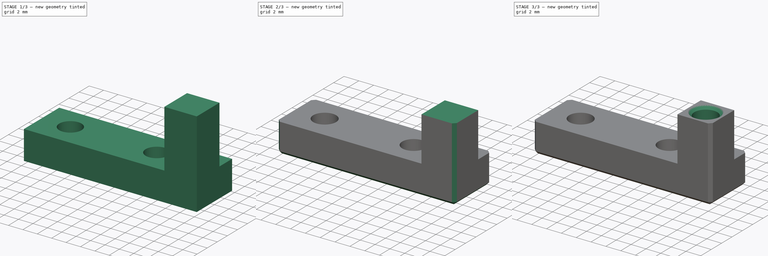
[diagram: build sequence overview — one tinted view per stage of 3, left to right]
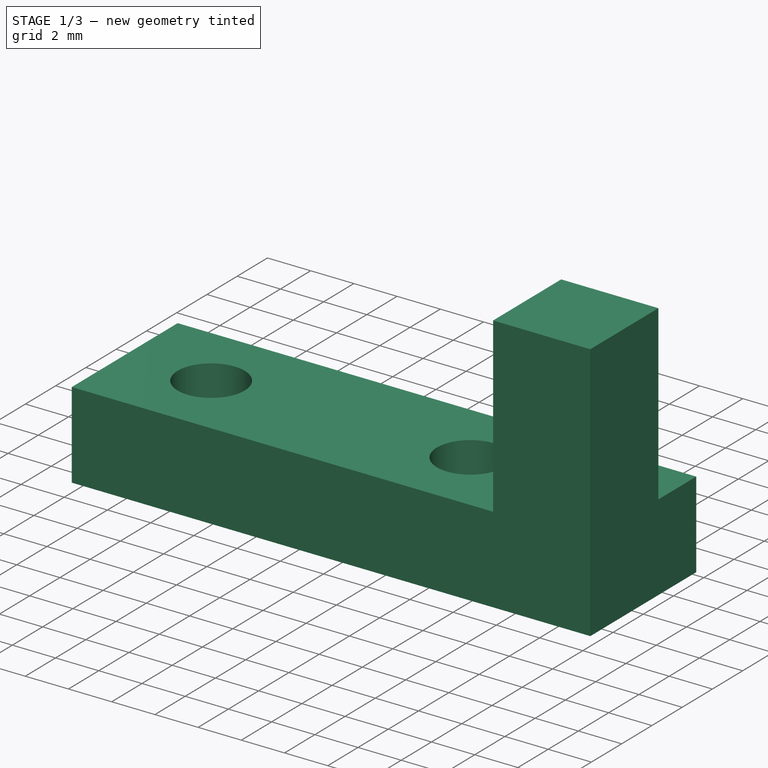
[diagram: stage 1 of 3 — iso view after this stage's code; geometry added in this stage tinted green]
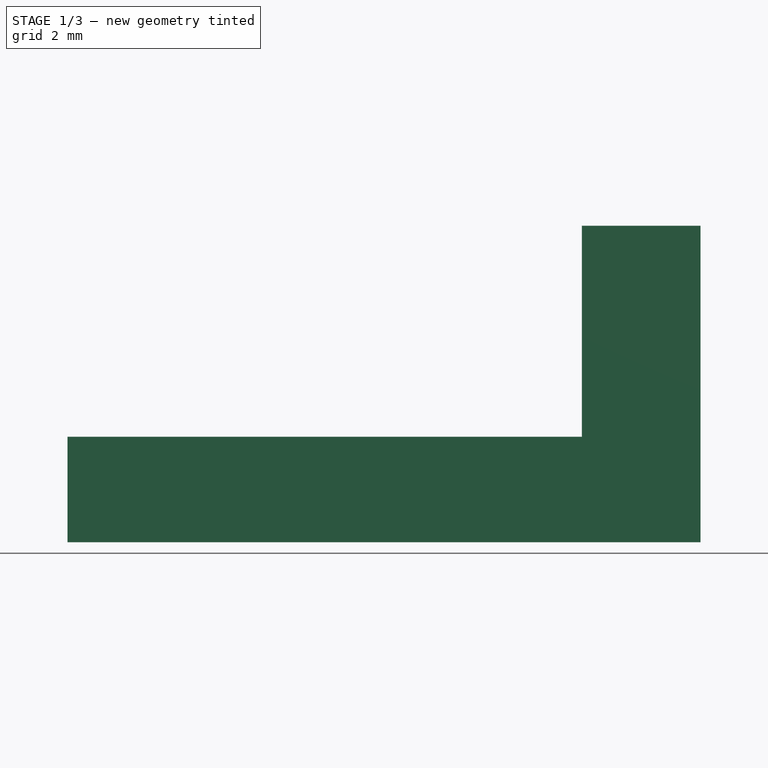
[diagram: stage 1 of 3 — front view after this stage's code; geometry added in this stage tinted green]
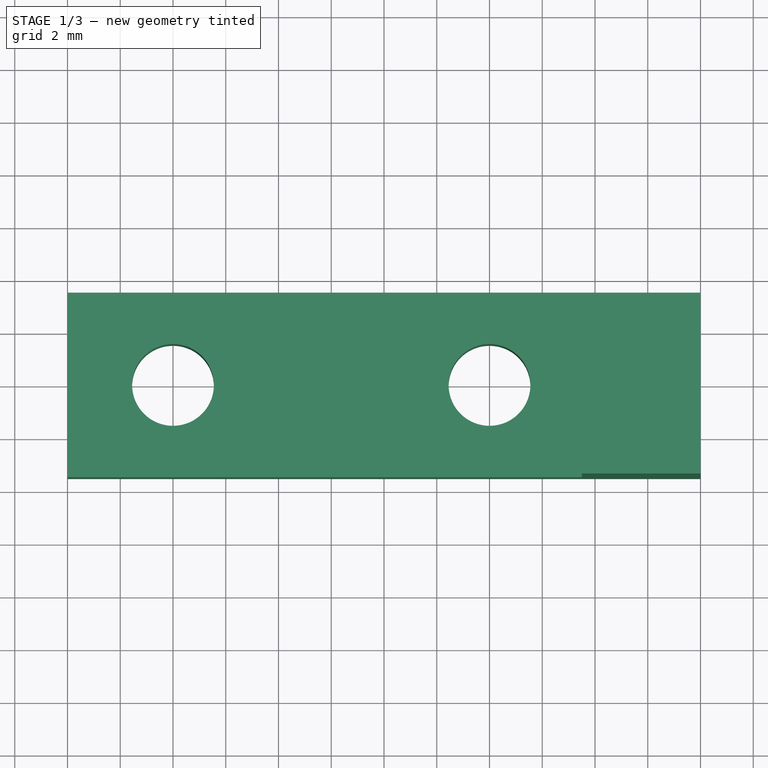
[diagram: stage 1 of 3 — top view after this stage's code; geometry added in this stage tinted green]
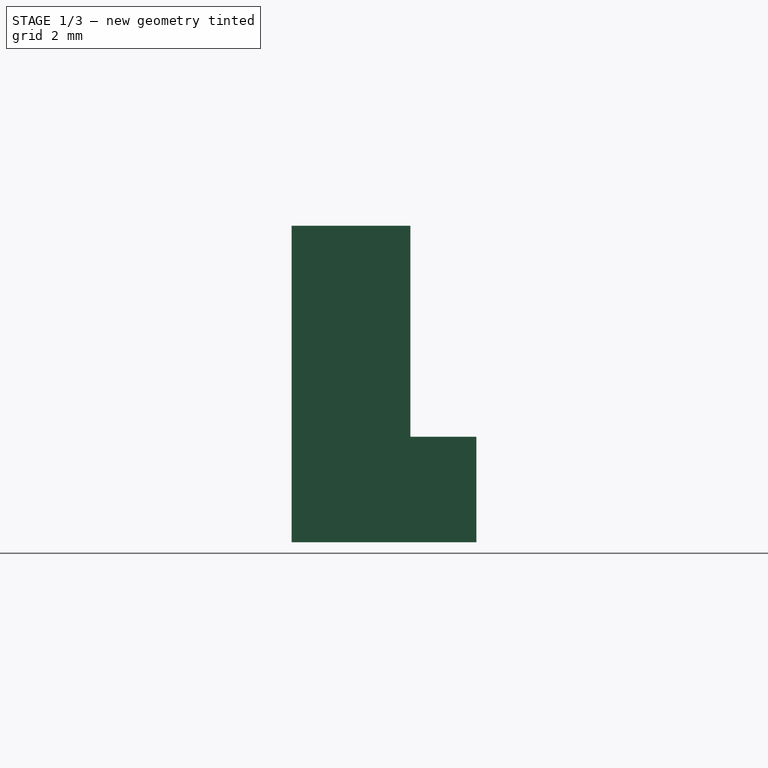
[diagram: stage 1 of 3 — right view after this stage's code; geometry added in this stage tinted green]
FCSTD DOCUMENT  (FreeCAD 0.19R24366 (Git))
Label: x-endstop
License: All rights reserved
LicenseURL: http://en.wikipedia.org/wiki/All_rights_reserved
objects: Sketcher::SketchObject×3, PartDesign::Pocket×3, PartDesign::Chamfer×2, PartDesign::Pad×1, PartDesign::Body×1, Part::Feature×1
note: 17 computed .brp shape members not serialized (recipe doc carries the construction recipe); baked Part::Feature solids carry a one-line shape summary decoded from their .brp

FEATURE [Sketcher::SketchObject] Sketch025
  FullyConstrained = false
  MapMode = 5
  Support = -> [XY_Plane016]
  sketch-geometry (6):
    g0: LineSegment StartX=-4 StartY=3.5 StartZ=0 EndX=20 EndY=3.5 EndZ=0
    g1: LineSegment StartX=20 StartY=3.5 StartZ=0 EndX=20 EndY=-3.5 EndZ=0
    g2: LineSegment StartX=20 StartY=-3.5 StartZ=0 EndX=-4 EndY=-3.5 EndZ=0
    g3: LineSegment StartX=-4 StartY=-3.5 StartZ=0 EndX=-4 EndY=3.5 EndZ=0
    g4: Circle CenterX=0 CenterY=0 CenterZ=0 NormalX=0 NormalY=0 NormalZ=1 AngleXU=0 Radius=1.55
    g5: Circle CenterX=12 CenterY=0 CenterZ=0 NormalX=0 NormalY=0 NormalZ=1 AngleXU=0 Radius=1.55
  constraints (16):
    c: Coincident(g0,g1)
    c: Coincident(g1,g2)
    c: Coincident(g2,g3)
    c: Coincident(g3,g0)
    c: Horizontal(g0)
    c: Horizontal(g2)
    c: Vertical(g1)
    c: Vertical(g3)
    c: DistanceY(g3,g3) = 7
    c: DistanceX(g0,g-1) = 4
    c: DistanceX(g-1,g0) = 20
    c: Coincident(g4,g-1)
    c: PointOnObject(g5,g-1)
    c: DistanceX(g4,g5) = 12
    c: Equal(g4,g5)
    c: Radius(g5) = 1.55
FEATURE [PartDesign::Pad] Pad004
  Direction = (1,1,1)
  Length = 12
  Length2 = 100
  Profile = -> Sketch025
  Type = 0
FEATURE [Sketcher::SketchObject] Sketch044
  ExternalGeometry = -> [Pad004]
  FullyConstrained = true
  MapMode = 5
  Placement = pos=(0,0,12) rot=(0,0,1;0rad)
  Support = -> [Pad004]
  sketch-geometry (6):
    g0: LineSegment StartX=-4 StartY=3.5 StartZ=0 EndX=-4 EndY=-3.5 EndZ=0
    g1: LineSegment StartX=-4 StartY=-3.5 StartZ=0 EndX=15.5 EndY=-3.5 EndZ=0
    g2: LineSegment StartX=20 StartY=3.5 StartZ=0 EndX=-4 EndY=3.5 EndZ=0
    g3: LineSegment StartX=15.5 StartY=-3.5 StartZ=0 EndX=15.5 EndY=1 EndZ=0
    g4: LineSegment StartX=15.5 StartY=1 StartZ=0 EndX=20 EndY=1 EndZ=0
    g5: LineSegment StartX=20 StartY=1 StartZ=0 EndX=20 EndY=3.5 EndZ=0
  constraints (16):
    c: Coincident(g-5,g0)
    c: Coincident(g0,g-5)
    c: Coincident(g0,g1)
    c: PointOnObject(g1,g-4)
    c: Coincident(g2,g0)
    c: Coincident(g1,g3)
    c: Vertical(g3)
    c: Coincident(g3,g4)
    c: PointOnObject(g4,g-6)
    c: Horizontal(g4)
    c: DistanceX(g4,g4) = 4.5
    c: Coincident(g5,g4)
    c: Coincident(g5,g2)
    c: Vertical(g5)
    c: DistanceY(g-1,g3) = 1
    c: Horizontal(g2)
FEATURE [PartDesign::Pocket] Pocket030
  BaseFeature = -> Pad004
  Length = 8
  Length2 = 100
  Profile = -> Sketch044
  Type = 0
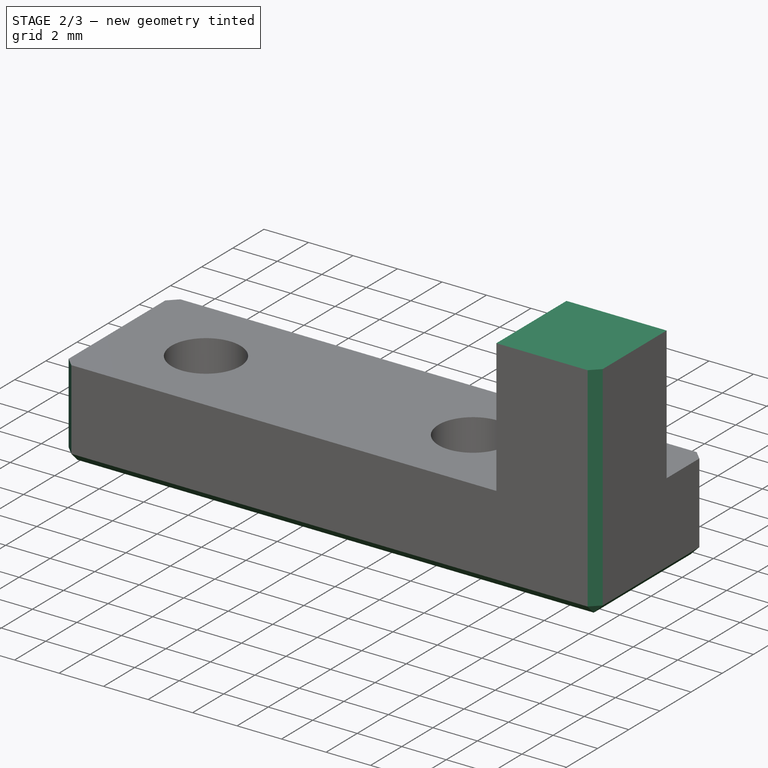
[diagram: stage 2 of 3 — iso view after this stage's code; geometry added in this stage tinted green]
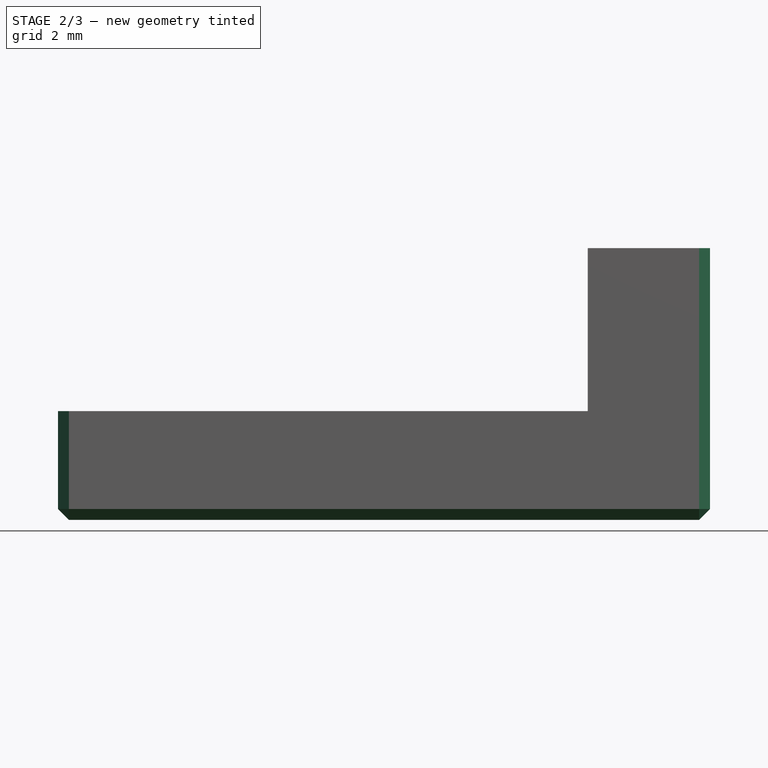
[diagram: stage 2 of 3 — front view after this stage's code; geometry added in this stage tinted green]
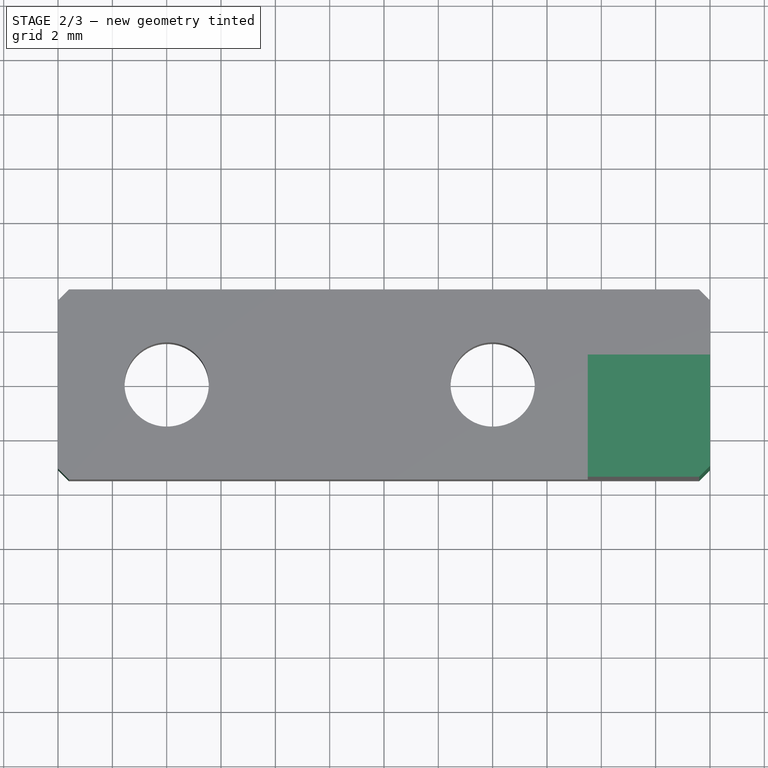
[diagram: stage 2 of 3 — top view after this stage's code; geometry added in this stage tinted green]
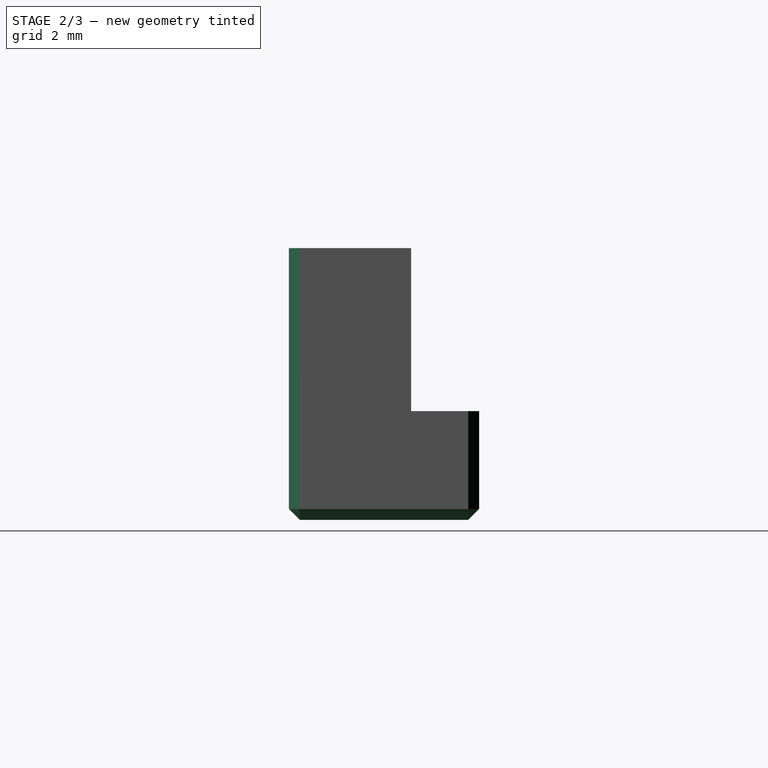
[diagram: stage 2 of 3 — right view after this stage's code; geometry added in this stage tinted green]
FEATURE [PartDesign::Chamfer] Chamfer016
  Angle = 45
  Base = -> Pocket030 [Face2,Edge20,Edge4,Edge10,Edge2]
  BaseFeature = -> Pocket030
  ChamferType = 0
  FlipDirection = false
  Size = 0.4
  Size2 = 1
  SupportTransform = false
FEATURE [PartDesign::Pocket] Pocket033
  BaseFeature = -> Chamfer016
  Length = 2
  Length2 = 100
  Profile = -> Chamfer016 [Face20]
  Type = 0
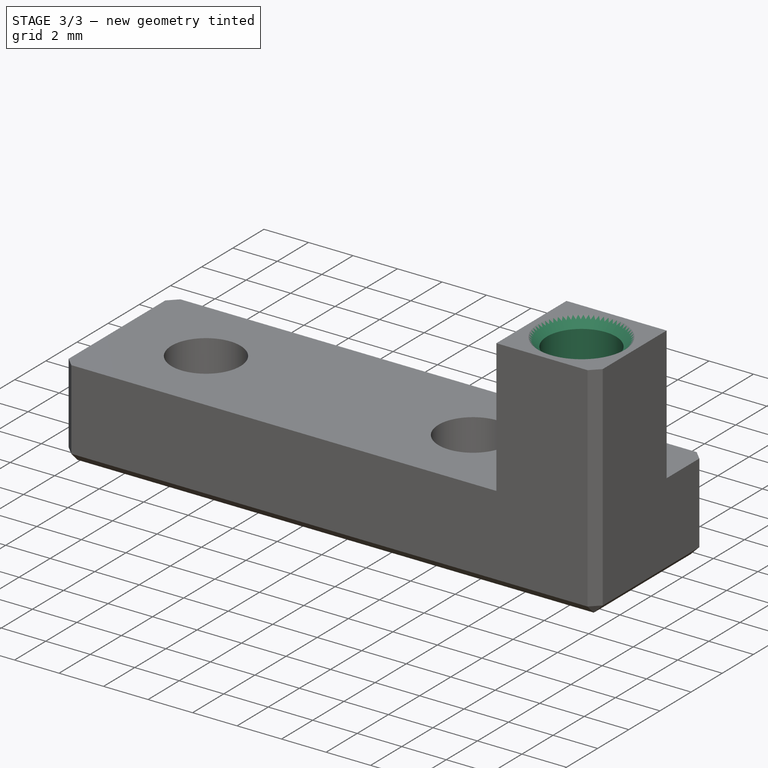
[diagram: stage 3 of 3 — iso view after this stage's code; geometry added in this stage tinted green]
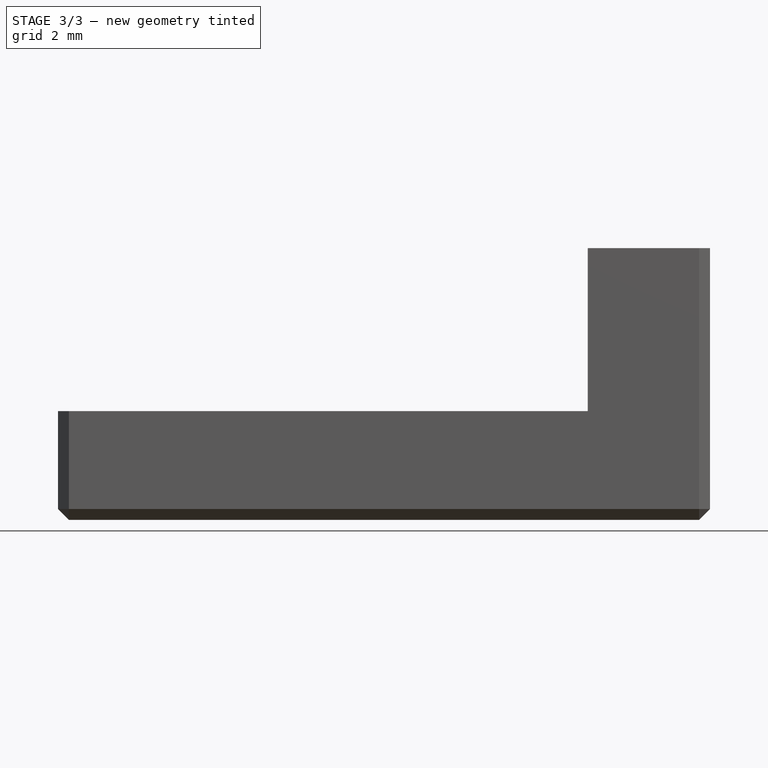
[diagram: stage 3 of 3 — front view after this stage's code; geometry added in this stage tinted green]
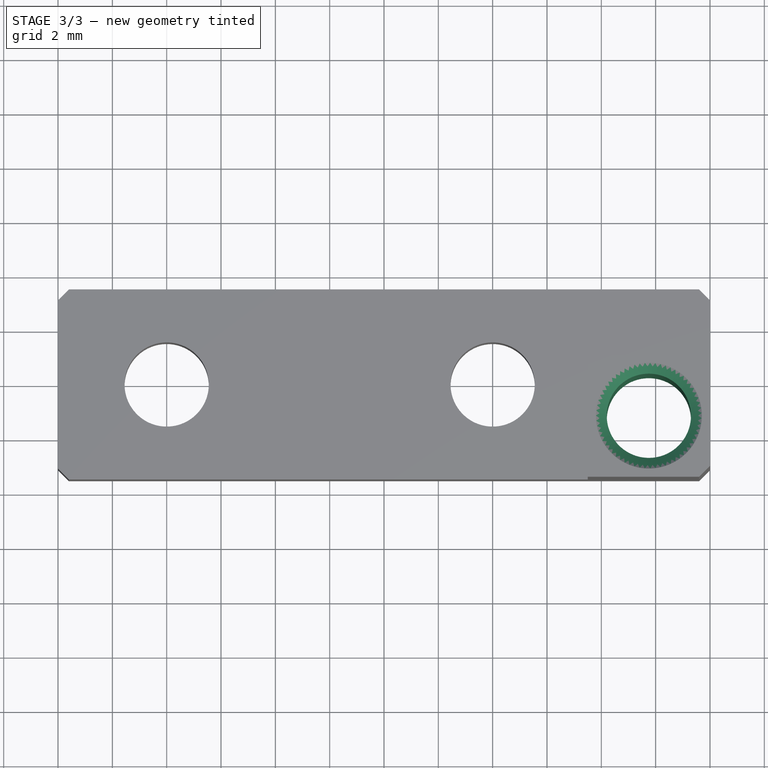
[diagram: stage 3 of 3 — top view after this stage's code; geometry added in this stage tinted green]
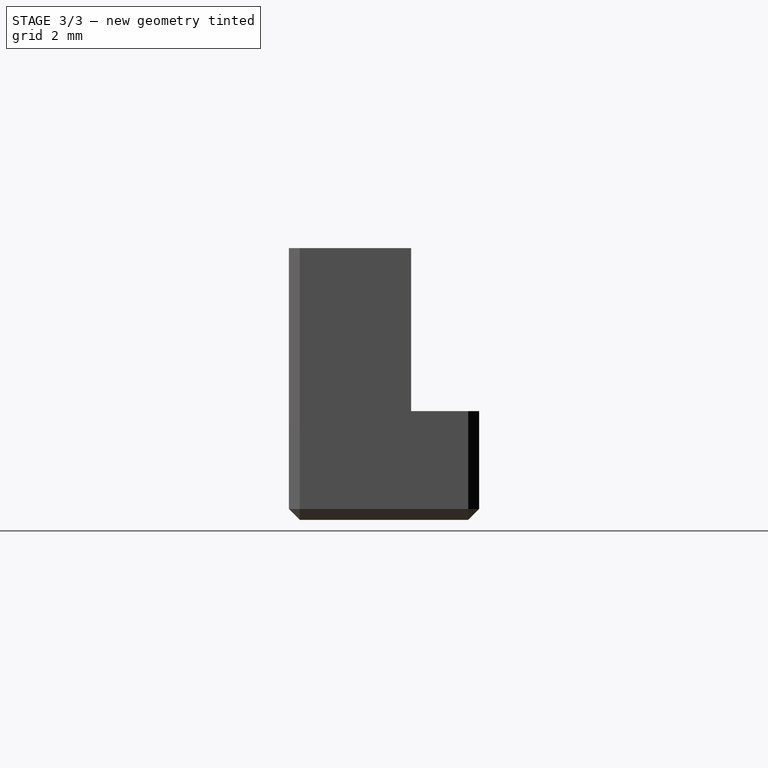
[diagram: stage 3 of 3 — right view after this stage's code; geometry added in this stage tinted green]
FEATURE [Sketcher::SketchObject] Sketch048
  ExternalGeometry = -> [Pocket033]
  FullyConstrained = true
  MapMode = 5
  Placement = pos=(0,0,10) rot=(0,0,1;0rad)
  Support = -> [Pocket033]
  sketch-geometry (1):
    g0: Circle CenterX=17.75 CenterY=-1.25 CenterZ=0 NormalX=0 NormalY=0 NormalZ=1 AngleXU=0 Radius=1.55
  constraints (3):
    c: Radius(g0) = 1.55
    c: DistanceX(g-5,g0) = 2.25
    c: DistanceY(g0,g-5) = 2.25
FEATURE [PartDesign::Pocket] Pocket034
  BaseFeature = -> Pocket033
  Length = 5
  Length2 = 100
  Profile = -> Sketch048
  Type = 1
FEATURE [PartDesign::Chamfer] Chamfer005021077002005
  Angle = 45
  Base = -> Pocket034 [Edge52]
  BaseFeature = -> Pocket034
  ChamferType = 0
  FlipDirection = false
  Size = 0.4
  Size2 = 1
  SupportTransform = false
FEATURE [PartDesign::Body] Body002002002002003  label="x-endstop"
  Group = -> [Sketch025,Pad004,Sketch044,Pocket030,Chamfer016,Pocket033,Sketch048,Pocket034,Chamfer005021077002005]
  Origin = -> Origin016
  Tip = -> Chamfer005021077002005
FEATURE [Part::Feature] Pocket033001
  Placement = pos=(0,-16.5,0) rot=(0,0,1;0rad)
  shape: bbox 24 x 7 x 10 mm, 25 faces (baked)
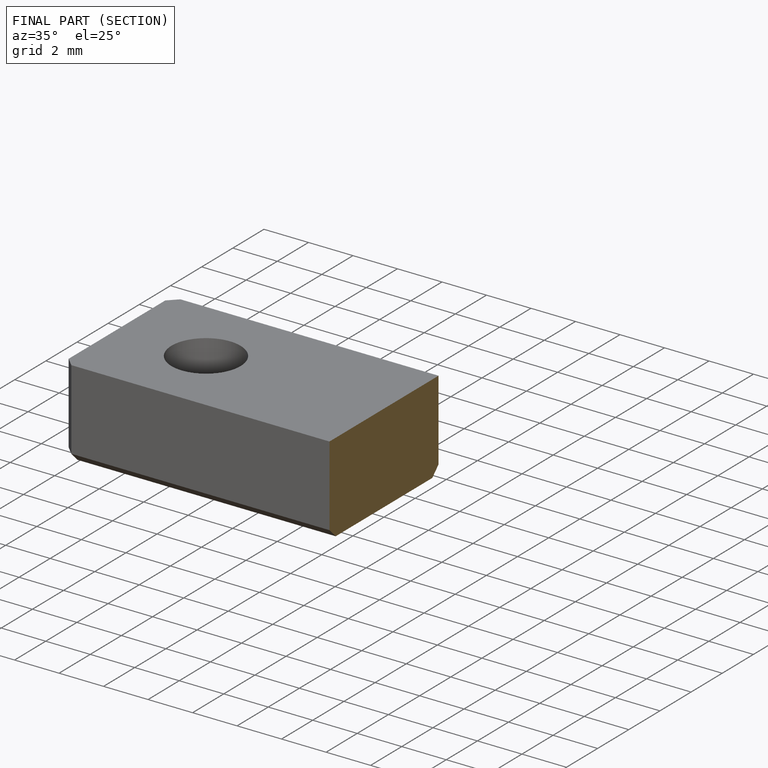
[diagram: finished part — half-section view (interior)]
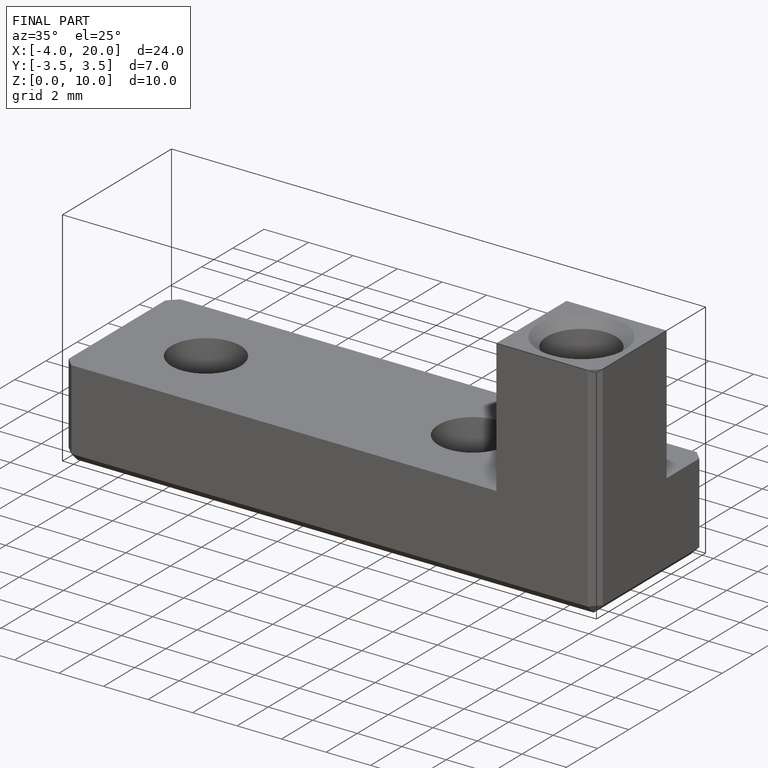
[diagram: finished part — iso view with bounding-box wireframe]
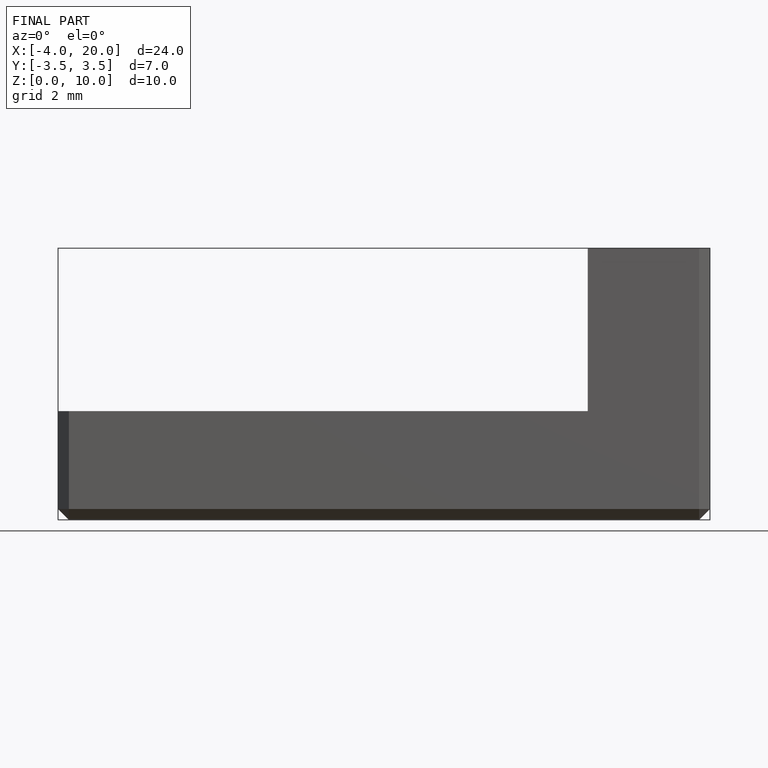
[diagram: finished part — front view with bounding-box wireframe]
